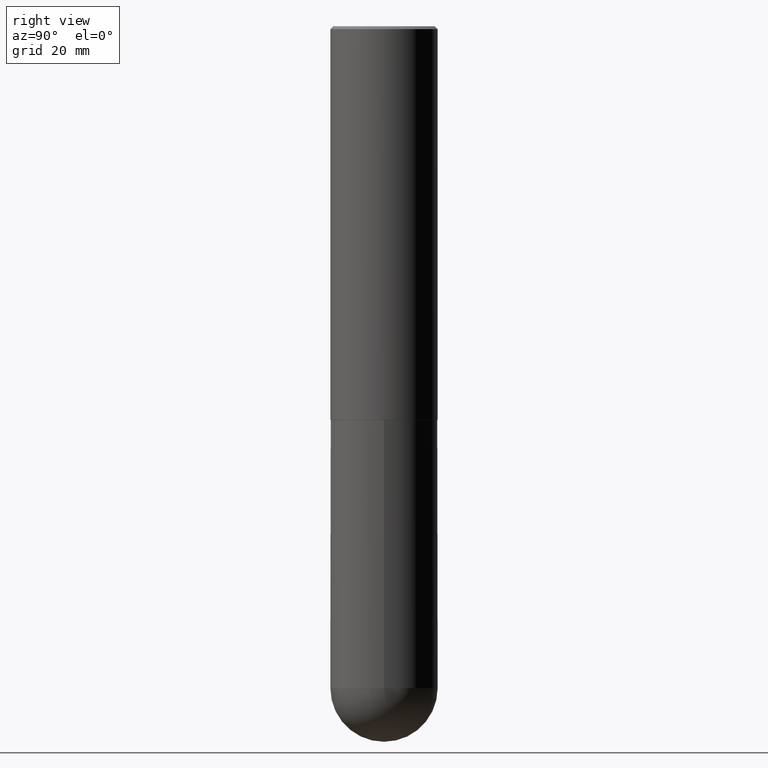
[diagram: clean part render]
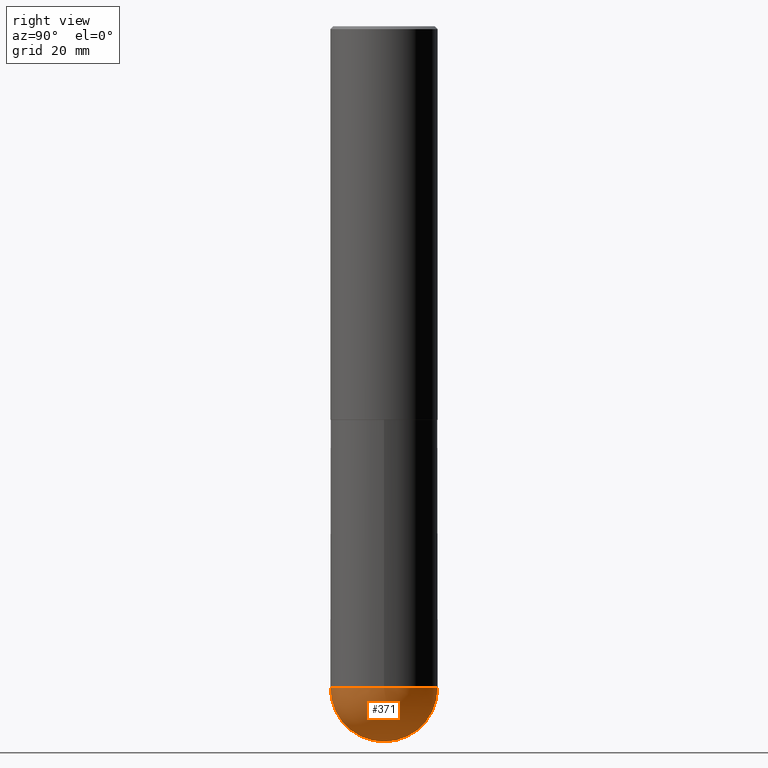
[diagram: same view with one face highlighted and labeled with its STEP entity id]
A machine part, right view. The second image highlights one B-rep face of the part: STEP entity #371.
In plain terms, the highlighted spherical surface has radius 9.525 mm.
Its self-contained STEP definition (entity closure, byte-faithful):
#8 = CIRCLE ( 'NONE', #312, 0.3750000000000003886 ) ;
#11 = DIRECTION ( 'NONE',  ( -1.000000000000000000, 6.982962677686266711E-15, -4.883557194083113462E-29 ) ) ;
#13 = EDGE_LOOP ( 'NONE', ( #375, #194, #42, #262 ) ) ;
#23 = AXIS2_PLACEMENT_3D ( 'NONE', #120, #307, #103 ) ;
#42 = ORIENTED_EDGE ( 'NONE', *, *, #251, .F. ) ;
#43 = DIRECTION ( 'NONE',  ( -7.105427357600999492E-15, -1.000000000000000000, 0.000000000000000000 ) ) ;
#60 = EDGE_CURVE ( 'NONE', #354, #137, #140, .T. ) ;
#67 = AXIS2_PLACEMENT_3D ( 'NONE', #213, #277, #369 ) ;
#100 = CARTESIAN_POINT ( 'NONE',  ( -2.664535259100265651E-15, -0.3750000000000165978, -4.624999999999999112 ) ) ;
#101 = DIRECTION ( 'NONE',  ( -1.000000000000000000, 7.105427357601001070E-15, -4.926315508542082329E-29 ) ) ;
#103 = DIRECTION ( 'NONE',  ( 1.000000000000000000, -6.982962677686270655E-15, 0.000000000000000000 ) ) ;
#120 = CARTESIAN_POINT ( 'NONE',  ( 1.131029322860625676E-28, -1.614810119214955014E-14, -4.625000000000000000 ) ) ;
#121 = DIRECTION ( 'NONE',  ( 6.982962677686265922E-15, 1.000000000000000000, 0.000000000000000000 ) ) ;
#129 = CARTESIAN_POINT ( 'NONE',  ( 1.191225862093391378E-28, -1.790862693487176734E-14, -5.000000000000000000 ) ) ;
#137 = VERTEX_POINT ( 'NONE', #382 ) ;
#140 = CIRCLE ( 'NONE', #170, 0.3750000000000003886 ) ;
#164 = EDGE_CURVE ( 'NONE', #354, #362, #8, .T. ) ;
#170 = AXIS2_PLACEMENT_3D ( 'NONE', #404, #207, #121 ) ;
#184 = CIRCLE ( 'NONE', #67, 0.3750000000000001110 ) ;
#186 = CARTESIAN_POINT ( 'NONE',  ( 0.3750000000000001110, -1.549344844111645238E-14, -4.625000000000000000 ) ) ;
#194 = ORIENTED_EDGE ( 'NONE', *, *, #60, .T. ) ;
#202 = CARTESIAN_POINT ( 'NONE',  ( 1.097917345069237163E-28, -1.662228356028959886E-14, -4.625000000000000000 ) ) ;
#204 = CIRCLE ( 'NONE', #23, 0.3750000000000001110 ) ;
#207 = DIRECTION ( 'NONE',  ( 1.000000000000000000, -6.982962677686265922E-15, 4.883557194083112340E-29 ) ) ;
#213 = CARTESIAN_POINT ( 'NONE',  ( 1.131029322860625676E-28, -1.614810119214955014E-14, -4.625000000000000000 ) ) ;
#231 = FACE_OUTER_BOUND ( 'NONE', #13, .T. ) ;
#238 = EDGE_CURVE ( 'NONE', #362, #408, #184, .T. ) ;
#251 = EDGE_CURVE ( 'NONE', #408, #137, #204, .T. ) ;
#259 = DIRECTION ( 'NONE',  ( 6.982962677686266711E-15, 1.000000000000000000, -2.913971193241878005E-15 ) ) ;
#262 = ORIENTED_EDGE ( 'NONE', *, *, #238, .F. ) ;
#277 = DIRECTION ( 'NONE',  ( -2.445468806185136597E-29, 3.491481338843145583E-15, 1.000000000000000000 ) ) ;
#285 = AXIS2_PLACEMENT_3D ( 'NONE', #202, #11, #259 ) ;
#307 = DIRECTION ( 'NONE',  ( -2.445468806185136597E-29, 3.491481338843145583E-15, 1.000000000000000000 ) ) ;
#312 = AXIS2_PLACEMENT_3D ( 'NONE', #323, #101, #43 ) ;
#323 = CARTESIAN_POINT ( 'NONE',  ( 1.097917345069237163E-28, -1.662228356028959886E-14, -4.625000000000000000 ) ) ;
#324 = SPHERICAL_SURFACE ( 'NONE', #285, 0.3750000000000003886 ) ;
#354 = VERTEX_POINT ( 'NONE', #129 ) ;
#362 = VERTEX_POINT ( 'NONE', #100 ) ;
#369 = DIRECTION ( 'NONE',  ( 1.000000000000000000, -6.982962677686270655E-15, 0.000000000000000000 ) ) ;
#371 = ADVANCED_FACE ( 'NONE', ( #231 ), #324, .T. ) ;
#375 = ORIENTED_EDGE ( 'NONE', *, *, #164, .F. ) ;
#382 = CARTESIAN_POINT ( 'NONE',  ( 2.618611004132463218E-15, 0.3749999999999838463, -4.625000000000000888 ) ) ;
#404 = CARTESIAN_POINT ( 'NONE',  ( 1.097917345069237163E-28, -1.662228356028959886E-14, -4.625000000000000000 ) ) ;
#408 = VERTEX_POINT ( 'NONE', #186 ) ;